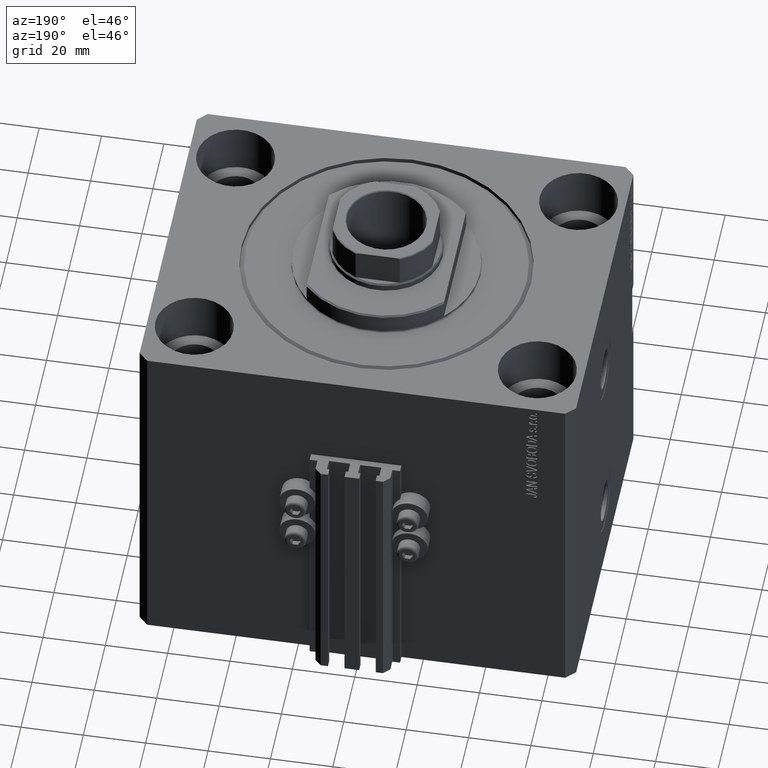
[diagram: clean part render]
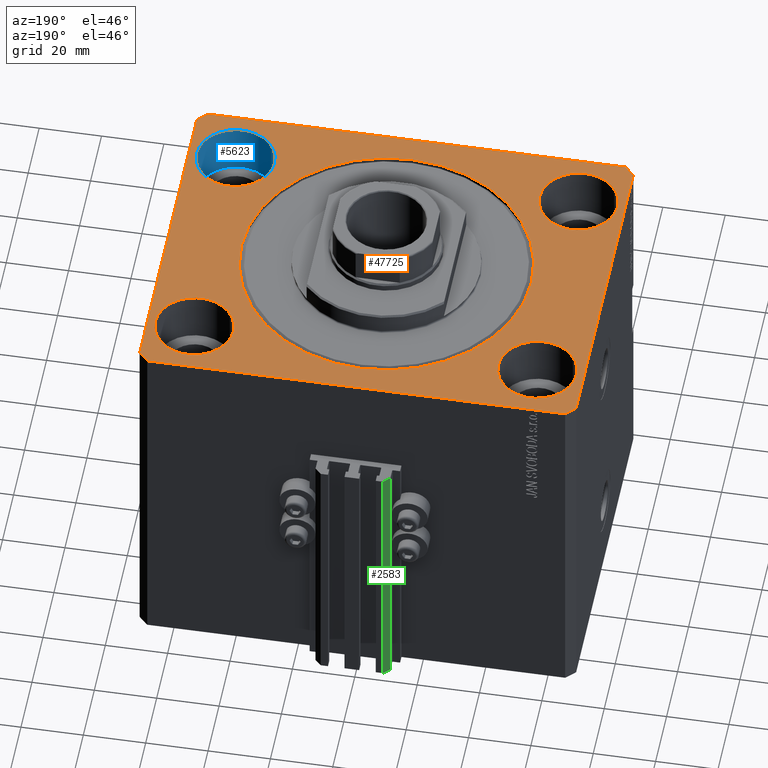
[diagram: same view with three faces highlighted in distinct colors, each labeled with its STEP entity id]
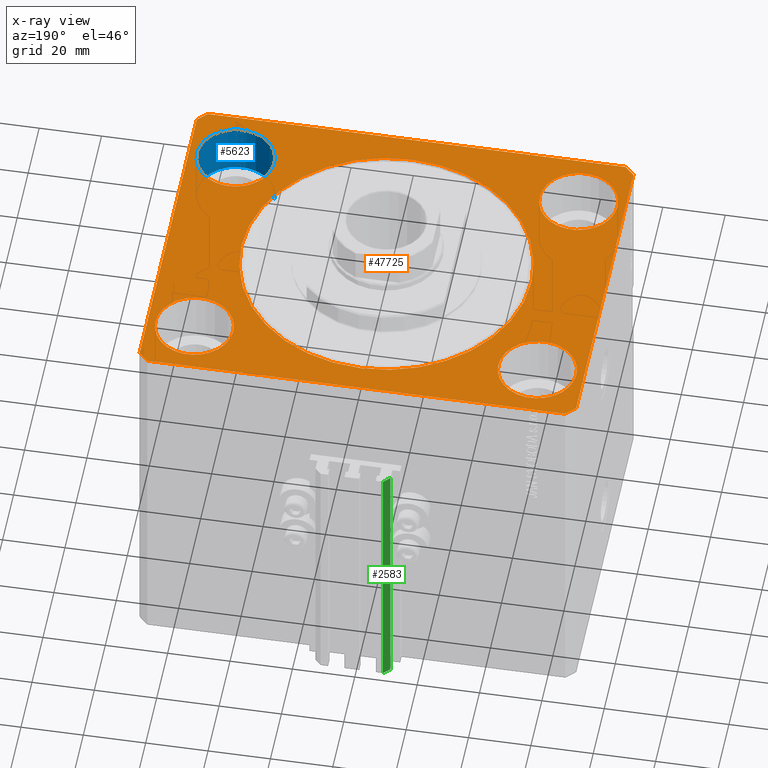
[diagram: x-ray of the same camera — body ghosted, the three highlighted faces saturated]
A machine part, auxiliary view with three faces highlighted in distinct colors.
The next image is the same camera in x-ray (body ghosted, the three faces saturated) — at least one of them is partly hidden behind the body in this view.
Their STEP definitions:

[orange] entity #47725 — the highlighted planar face has unit normal (0, 0, 1).
#12 = AXIS2_PLACEMENT_3D ( 'NONE', #10141, #40860, #6658 ) ;
#74 = LINE ( 'NONE', #7027, #13823 ) ;
#247 = CARTESIAN_POINT ( 'NONE',  ( 0.000000000000000000, 0.000000000000000000, 0.000000000000000000 ) ) ;
#346 = VECTOR ( 'NONE', #31118, 1000.000000000000000 ) ;
#772 = CIRCLE ( 'NONE', #28667, 12.49999999999999645 ) ;
#879 = ORIENTED_EDGE ( 'NONE', *, *, #25690, .F. ) ;
#1072 = VECTOR ( 'NONE', #20613, 1000.000000000000000 ) ;
#1089 = VERTEX_POINT ( 'NONE', #8980 ) ;
#1126 = DIRECTION ( 'NONE',  ( 1.000000000000000000, 0.000000000000000000, 0.000000000000000000 ) ) ;
#1235 = LINE ( 'NONE', #31920, #28699 ) ;
#1368 = CARTESIAN_POINT ( 'NONE',  ( 55.00000000000000711, -37.50000000000000711, 0.000000000000000000 ) ) ;
#1510 = CIRCLE ( 'NONE', #18992, 12.49999999999999645 ) ;
#2547 = VERTEX_POINT ( 'NONE', #24177 ) ;
#2702 = VERTEX_POINT ( 'NONE', #47375 ) ;
#2856 = CARTESIAN_POINT ( 'NONE',  ( 42.50000000000000711, 37.50000000000002132, 0.000000000000000000 ) ) ;
#3077 = EDGE_CURVE ( 'NONE', #47551, #3905, #26736, .T. ) ;
#3905 = VERTEX_POINT ( 'NONE', #25324 ) ;
#4024 = CIRCLE ( 'NONE', #16789, 12.49999999999999645 ) ;
#4258 = EDGE_LOOP ( 'NONE', ( #5799, #48051 ) ) ;
#4647 = CARTESIAN_POINT ( 'NONE',  ( -70.00000000000001421, -51.99999999999999289, 0.000000000000000000 ) ) ;
#5332 = CARTESIAN_POINT ( 'NONE',  ( 70.00000000000000000, -51.99999999999999289, 0.000000000000000000 ) ) ;
#5685 = DIRECTION ( 'NONE',  ( 1.000000000000000000, 1.553483709829976241E-16, 0.000000000000000000 ) ) ;
#5799 = ORIENTED_EDGE ( 'NONE', *, *, #42153, .F. ) ;
#5842 = VERTEX_POINT ( 'NONE', #41654 ) ;
#6198 = EDGE_CURVE ( 'NONE', #45144, #47551, #44062, .T. ) ;
#6348 = CARTESIAN_POINT ( 'NONE',  ( 70.00000000000000000, -51.99999999999999289, 0.000000000000000000 ) ) ;
#6411 = CARTESIAN_POINT ( 'NONE',  ( -42.50000000000000711, 37.49999999999999289, 0.000000000000000000 ) ) ;
#6658 = DIRECTION ( 'NONE',  ( 1.000000000000000000, 0.000000000000000000, -0.000000000000000000 ) ) ;
#7027 = CARTESIAN_POINT ( 'NONE',  ( -67.00000000000000000, 55.00000000000000000, 0.000000000000000000 ) ) ;
#7181 = AXIS2_PLACEMENT_3D ( 'NONE', #8431, #34896, #42874 ) ;
#7330 = VECTOR ( 'NONE', #16452, 1000.000000000000114 ) ;
#7467 = VERTEX_POINT ( 'NONE', #2856 ) ;
#7543 = DIRECTION ( 'NONE',  ( 1.000000000000000000, 0.000000000000000000, 0.000000000000000000 ) ) ;
#7677 = VERTEX_POINT ( 'NONE', #14209 ) ;
#8017 = AXIS2_PLACEMENT_3D ( 'NONE', #247, #37922, #30689 ) ;
#8431 = CARTESIAN_POINT ( 'NONE',  ( -55.00000000000000711, -37.50000000000000711, 0.000000000000000000 ) ) ;
#8819 = ORIENTED_EDGE ( 'NONE', *, *, #37439, .T. ) ;
#8980 = CARTESIAN_POINT ( 'NONE',  ( -67.00000000000000000, 55.00000000000000000, 0.000000000000000000 ) ) ;
#9384 = VECTOR ( 'NONE', #15062, 1000.000000000000000 ) ;
#9688 = EDGE_CURVE ( 'NONE', #1089, #21702, #74, .T. ) ;
#9758 = EDGE_CURVE ( 'NONE', #2702, #37259, #17808, .T. ) ;
#10059 = ORIENTED_EDGE ( 'NONE', *, *, #45560, .F. ) ;
#10141 = CARTESIAN_POINT ( 'NONE',  ( 0.000000000000000000, 0.000000000000000000, 0.000000000000000000 ) ) ;
#10345 = CIRCLE ( 'NONE', #7181, 12.49999999999999645 ) ;
#10376 = FACE_OUTER_BOUND ( 'NONE', #34946, .T. ) ;
#10478 = VECTOR ( 'NONE', #34799, 1000.000000000000000 ) ;
#11561 = LINE ( 'NONE', #35303, #10478 ) ;
#11579 = CARTESIAN_POINT ( 'NONE',  ( -69.99999999999998579, 51.99999999999999289, 0.000000000000000000 ) ) ;
#11606 = CIRCLE ( 'NONE', #28391, 12.49999999999999645 ) ;
#11959 = CARTESIAN_POINT ( 'NONE',  ( 67.00000000000001421, -54.99999999999997868, 0.000000000000000000 ) ) ;
#12615 = ORIENTED_EDGE ( 'NONE', *, *, #46854, .T. ) ;
#12726 = DIRECTION ( 'NONE',  ( 0.000000000000000000, 0.000000000000000000, 1.000000000000000000 ) ) ;
#13424 = VERTEX_POINT ( 'NONE', #41847 ) ;
#13823 = VECTOR ( 'NONE', #26257, 1000.000000000000114 ) ;
#13886 = EDGE_LOOP ( 'NONE', ( #16828, #24356 ) ) ;
#13968 = CARTESIAN_POINT ( 'NONE',  ( 55.00000000000000711, -37.50000000000000711, 0.000000000000000000 ) ) ;
#14209 = CARTESIAN_POINT ( 'NONE',  ( 46.50000000000000000, 0.000000000000000000, 0.000000000000000000 ) ) ;
#14530 = CARTESIAN_POINT ( 'NONE',  ( 67.00000000000001421, -54.99999999999997868, 0.000000000000000000 ) ) ;
#14630 = EDGE_CURVE ( 'NONE', #13424, #5842, #40462, .T. ) ;
#14785 = EDGE_LOOP ( 'NONE', ( #41355, #22028 ) ) ;
#15062 = DIRECTION ( 'NONE',  ( -2.668805347656626678E-16, -1.000000000000000000, 0.000000000000000000 ) ) ;
#15813 = CARTESIAN_POINT ( 'NONE',  ( -69.99999999999998579, 51.99999999999999289, 0.000000000000000000 ) ) ;
#16067 = VECTOR ( 'NONE', #34741, 1000.000000000000000 ) ;
#16216 = CARTESIAN_POINT ( 'NONE',  ( 55.00000000000000711, 37.50000000000002132, 0.000000000000000000 ) ) ;
#16452 = DIRECTION ( 'NONE',  ( 0.7071067811865474617, 0.7071067811865474617, 0.000000000000000000 ) ) ;
#16463 = DIRECTION ( 'NONE',  ( 0.000000000000000000, 0.000000000000000000, 1.000000000000000000 ) ) ;
#16789 = AXIS2_PLACEMENT_3D ( 'NONE', #13968, #40922, #21933 ) ;
#16828 = ORIENTED_EDGE ( 'NONE', *, *, #36229, .F. ) ;
#17808 = CIRCLE ( 'NONE', #36957, 12.49999999999999645 ) ;
#17946 = DIRECTION ( 'NONE',  ( 0.000000000000000000, 0.000000000000000000, 1.000000000000000000 ) ) ;
#18064 = EDGE_CURVE ( 'NONE', #21702, #39986, #26309, .T. ) ;
#18992 = AXIS2_PLACEMENT_3D ( 'NONE', #16216, #16463, #31472 ) ;
#19839 = EDGE_CURVE ( 'NONE', #7467, #37701, #1510, .T. ) ;
#20613 = DIRECTION ( 'NONE',  ( 5.337610695313255329E-15, 1.000000000000000000, 0.000000000000000000 ) ) ;
#20702 = DIRECTION ( 'NONE',  ( 1.000000000000000000, 0.000000000000000000, 0.000000000000000000 ) ) ;
#21254 = VERTEX_POINT ( 'NONE', #25886 ) ;
#21424 = EDGE_LOOP ( 'NONE', ( #37762, #879 ) ) ;
#21702 = VERTEX_POINT ( 'NONE', #11579 ) ;
#21933 = DIRECTION ( 'NONE',  ( 1.000000000000000000, 0.000000000000000000, 0.000000000000000000 ) ) ;
#22028 = ORIENTED_EDGE ( 'NONE', *, *, #9758, .F. ) ;
#22207 = DIRECTION ( 'NONE',  ( 0.000000000000000000, 0.000000000000000000, 1.000000000000000000 ) ) ;
#22362 = AXIS2_PLACEMENT_3D ( 'NONE', #49363, #42136, #41139 ) ;
#22511 = DIRECTION ( 'NONE',  ( 0.000000000000000000, 0.000000000000000000, 1.000000000000000000 ) ) ;
#22620 = CIRCLE ( 'NONE', #34588, 46.50000000000000000 ) ;
#22721 = DIRECTION ( 'NONE',  ( 1.000000000000000000, 0.000000000000000000, 0.000000000000000000 ) ) ;
#22732 = CARTESIAN_POINT ( 'NONE',  ( 70.00000000000056843, 51.99999999999996447, 0.000000000000000000 ) ) ;
#24177 = CARTESIAN_POINT ( 'NONE',  ( -67.50000000000000000, -37.50000000000000711, 0.000000000000000000 ) ) ;
#24260 = EDGE_LOOP ( 'NONE', ( #42502, #10059 ) ) ;
#24356 = ORIENTED_EDGE ( 'NONE', *, *, #45657, .F. ) ;
#24843 = EDGE_CURVE ( 'NONE', #39390, #2547, #10345, .T. ) ;
#25157 = FACE_BOUND ( 'NONE', #21424, .T. ) ;
#25315 = AXIS2_PLACEMENT_3D ( 'NONE', #1368, #32061, #1126 ) ;
#25324 = CARTESIAN_POINT ( 'NONE',  ( 67.00000000000061107, 55.00000000000002132, 0.000000000000000000 ) ) ;
#25500 = CARTESIAN_POINT ( 'NONE',  ( 70.00000000000056843, 51.99999999999996447, 0.000000000000000000 ) ) ;
#25690 = EDGE_CURVE ( 'NONE', #2547, #39390, #43916, .T. ) ;
#25726 = ORIENTED_EDGE ( 'NONE', *, *, #3077, .T. ) ;
#25886 = CARTESIAN_POINT ( 'NONE',  ( -46.50000000000000000, 5.694607616035192278E-15, 0.000000000000000000 ) ) ;
#26257 = DIRECTION ( 'NONE',  ( -0.7071067811865451302, -0.7071067811865500152, 0.000000000000000000 ) ) ;
#26309 = LINE ( 'NONE', #15813, #9384 ) ;
#26736 = LINE ( 'NONE', #22732, #16067 ) ;
#26751 = CARTESIAN_POINT ( 'NONE',  ( 67.50000000000000000, 37.50000000000002132, 0.000000000000000000 ) ) ;
#27300 = ORIENTED_EDGE ( 'NONE', *, *, #6198, .T. ) ;
#28172 = CARTESIAN_POINT ( 'NONE',  ( -70.00000000000001421, -51.99999999999999289, 0.000000000000000000 ) ) ;
#28391 = AXIS2_PLACEMENT_3D ( 'NONE', #45474, #22511, #7543 ) ;
#28634 = EDGE_CURVE ( 'NONE', #29348, #45144, #35459, .T. ) ;
#28667 = AXIS2_PLACEMENT_3D ( 'NONE', #48882, #17946, #33928 ) ;
#28699 = VECTOR ( 'NONE', #5685, 1000.000000000000000 ) ;
#29151 = FACE_BOUND ( 'NONE', #13886, .T. ) ;
#29348 = VERTEX_POINT ( 'NONE', #14530 ) ;
#29771 = VERTEX_POINT ( 'NONE', #45933 ) ;
#30216 = CARTESIAN_POINT ( 'NONE',  ( 0.000000000000000000, 0.000000000000000000, 0.000000000000000000 ) ) ;
#30689 = DIRECTION ( 'NONE',  ( 1.000000000000000000, 0.000000000000000000, 0.000000000000000000 ) ) ;
#31118 = DIRECTION ( 'NONE',  ( 0.7071067811865466846, -0.7071067811865483499, 0.000000000000000000 ) ) ;
#31437 = EDGE_CURVE ( 'NONE', #3905, #1089, #11561, .T. ) ;
#31472 = DIRECTION ( 'NONE',  ( 1.000000000000000000, 0.000000000000000000, 0.000000000000000000 ) ) ;
#31920 = CARTESIAN_POINT ( 'NONE',  ( -67.00000000000001421, -55.00000000000000000, 0.000000000000000000 ) ) ;
#32061 = DIRECTION ( 'NONE',  ( 0.000000000000000000, 0.000000000000000000, 1.000000000000000000 ) ) ;
#33928 = DIRECTION ( 'NONE',  ( 1.000000000000000000, 0.000000000000000000, 0.000000000000000000 ) ) ;
#34588 = AXIS2_PLACEMENT_3D ( 'NONE', #30216, #22207, #22721 ) ;
#34741 = DIRECTION ( 'NONE',  ( -0.7071067811865344721, 0.7071067811865606734, 0.000000000000000000 ) ) ;
#34799 = DIRECTION ( 'NONE',  ( -1.000000000000000000, -1.553483709829969339E-16, 0.000000000000000000 ) ) ;
#34896 = DIRECTION ( 'NONE',  ( 0.000000000000000000, 0.000000000000000000, 1.000000000000000000 ) ) ;
#34946 = EDGE_LOOP ( 'NONE', ( #39424, #48040, #44244, #8819, #12615, #35869, #27300, #25726 ) ) ;
#35303 = CARTESIAN_POINT ( 'NONE',  ( 67.00000000000061107, 55.00000000000002132, 0.000000000000000000 ) ) ;
#35459 = LINE ( 'NONE', #11959, #7330 ) ;
#35869 = ORIENTED_EDGE ( 'NONE', *, *, #28634, .T. ) ;
#36229 = EDGE_CURVE ( 'NONE', #7677, #21254, #22620, .T. ) ;
#36957 = AXIS2_PLACEMENT_3D ( 'NONE', #46919, #12726, #20702 ) ;
#37259 = VERTEX_POINT ( 'NONE', #6411 ) ;
#37439 = EDGE_CURVE ( 'NONE', #39986, #29771, #43095, .T. ) ;
#37701 = VERTEX_POINT ( 'NONE', #26751 ) ;
#37762 = ORIENTED_EDGE ( 'NONE', *, *, #24843, .F. ) ;
#37922 = DIRECTION ( 'NONE',  ( 0.000000000000000000, 0.000000000000000000, 1.000000000000000000 ) ) ;
#39390 = VERTEX_POINT ( 'NONE', #44553 ) ;
#39424 = ORIENTED_EDGE ( 'NONE', *, *, #31437, .T. ) ;
#39844 = EDGE_CURVE ( 'NONE', #37259, #2702, #11606, .T. ) ;
#39986 = VERTEX_POINT ( 'NONE', #28172 ) ;
#40381 = FACE_BOUND ( 'NONE', #4258, .T. ) ;
#40462 = CIRCLE ( 'NONE', #25315, 12.49999999999999645 ) ;
#40860 = DIRECTION ( 'NONE',  ( 0.000000000000000000, 0.000000000000000000, 1.000000000000000000 ) ) ;
#40922 = DIRECTION ( 'NONE',  ( 0.000000000000000000, 0.000000000000000000, 1.000000000000000000 ) ) ;
#41139 = DIRECTION ( 'NONE',  ( 1.000000000000000000, 0.000000000000000000, 0.000000000000000000 ) ) ;
#41355 = ORIENTED_EDGE ( 'NONE', *, *, #39844, .F. ) ;
#41654 = CARTESIAN_POINT ( 'NONE',  ( 42.50000000000000711, -37.50000000000000711, 0.000000000000000000 ) ) ;
#41847 = CARTESIAN_POINT ( 'NONE',  ( 67.50000000000000000, -37.50000000000000711, 0.000000000000000000 ) ) ;
#42136 = DIRECTION ( 'NONE',  ( 0.000000000000000000, 0.000000000000000000, 1.000000000000000000 ) ) ;
#42153 = EDGE_CURVE ( 'NONE', #37701, #7467, #772, .T. ) ;
#42502 = ORIENTED_EDGE ( 'NONE', *, *, #14630, .F. ) ;
#42874 = DIRECTION ( 'NONE',  ( 1.000000000000000000, 0.000000000000000000, 0.000000000000000000 ) ) ;
#43095 = LINE ( 'NONE', #4647, #346 ) ;
#43916 = CIRCLE ( 'NONE', #22362, 12.49999999999999645 ) ;
#44062 = LINE ( 'NONE', #6348, #1072 ) ;
#44128 = FACE_BOUND ( 'NONE', #24260, .T. ) ;
#44244 = ORIENTED_EDGE ( 'NONE', *, *, #18064, .T. ) ;
#44363 = PLANE ( 'NONE',  #12 ) ;
#44553 = CARTESIAN_POINT ( 'NONE',  ( -42.50000000000000711, -37.50000000000000711, 0.000000000000000000 ) ) ;
#44671 = CIRCLE ( 'NONE', #8017, 46.50000000000000000 ) ;
#45144 = VERTEX_POINT ( 'NONE', #5332 ) ;
#45474 = CARTESIAN_POINT ( 'NONE',  ( -55.00000000000000711, 37.49999999999999289, 0.000000000000000000 ) ) ;
#45560 = EDGE_CURVE ( 'NONE', #5842, #13424, #4024, .T. ) ;
#45657 = EDGE_CURVE ( 'NONE', #21254, #7677, #44671, .T. ) ;
#45933 = CARTESIAN_POINT ( 'NONE',  ( -67.00000000000001421, -55.00000000000000000, 0.000000000000000000 ) ) ;
#46854 = EDGE_CURVE ( 'NONE', #29771, #29348, #1235, .T. ) ;
#46919 = CARTESIAN_POINT ( 'NONE',  ( -55.00000000000000711, 37.49999999999999289, 0.000000000000000000 ) ) ;
#47375 = CARTESIAN_POINT ( 'NONE',  ( -67.50000000000000000, 37.49999999999999289, 0.000000000000000000 ) ) ;
#47551 = VERTEX_POINT ( 'NONE', #25500 ) ;
#47725 = ADVANCED_FACE ( 'NONE', ( #25157, #44128, #40381, #48339, #29151, #10376 ), #44363, .T. ) ;
#48040 = ORIENTED_EDGE ( 'NONE', *, *, #9688, .T. ) ;
#48051 = ORIENTED_EDGE ( 'NONE', *, *, #19839, .F. ) ;
#48339 = FACE_BOUND ( 'NONE', #14785, .T. ) ;
#48882 = CARTESIAN_POINT ( 'NONE',  ( 55.00000000000000711, 37.50000000000002132, 0.000000000000000000 ) ) ;
#49363 = CARTESIAN_POINT ( 'NONE',  ( -55.00000000000000711, -37.50000000000000711, 0.000000000000000000 ) ) ;

[blue] entity #5623 — the highlighted cylindrical surface (partial cylindrical patch) has radius 12.5 mm, axis along (0, 0, 1).
#39 = CARTESIAN_POINT ( 'NONE',  ( 55.00000000000000711, -37.50000000000000711, -17.00000000000000000 ) ) ;
#1007 = ORIENTED_EDGE ( 'NONE', *, *, #45560, .T. ) ;
#1365 = ORIENTED_EDGE ( 'NONE', *, *, #11661, .F. ) ;
#4024 = CIRCLE ( 'NONE', #16789, 12.49999999999999645 ) ;
#4312 = AXIS2_PLACEMENT_3D ( 'NONE', #28049, #47247, #4811 ) ;
#4802 = LINE ( 'NONE', #20031, #9007 ) ;
#4811 = DIRECTION ( 'NONE',  ( 1.000000000000000000, 0.000000000000000000, 0.000000000000000000 ) ) ;
#5623 = ADVANCED_FACE ( 'NONE', ( #49176 ), #45951, .F. ) ;
#5842 = VERTEX_POINT ( 'NONE', #41654 ) ;
#9007 = VECTOR ( 'NONE', #20291, 1000.000000000000000 ) ;
#11661 = EDGE_CURVE ( 'NONE', #17948, #37791, #25823, .T. ) ;
#13424 = VERTEX_POINT ( 'NONE', #41847 ) ;
#13968 = CARTESIAN_POINT ( 'NONE',  ( 55.00000000000000711, -37.50000000000000711, 0.000000000000000000 ) ) ;
#16789 = AXIS2_PLACEMENT_3D ( 'NONE', #13968, #40922, #21933 ) ;
#17009 = CARTESIAN_POINT ( 'NONE',  ( 67.50000000000000000, -37.50000000000000711, -17.00000000000000000 ) ) ;
#17948 = VERTEX_POINT ( 'NONE', #41050 ) ;
#20031 = CARTESIAN_POINT ( 'NONE',  ( 67.50000000000000000, -37.50000000000000711, -17.00000000000000000 ) ) ;
#20291 = DIRECTION ( 'NONE',  ( -0.000000000000000000, -0.000000000000000000, 1.000000000000000000 ) ) ;
#21753 = AXIS2_PLACEMENT_3D ( 'NONE', #39, #33985, #33738 ) ;
#21933 = DIRECTION ( 'NONE',  ( 1.000000000000000000, 0.000000000000000000, 0.000000000000000000 ) ) ;
#21968 = LINE ( 'NONE', #48198, #41466 ) ;
#22236 = EDGE_LOOP ( 'NONE', ( #1365, #29249, #1007, #37481 ) ) ;
#25730 = DIRECTION ( 'NONE',  ( -0.000000000000000000, -0.000000000000000000, 1.000000000000000000 ) ) ;
#25823 = CIRCLE ( 'NONE', #4312, 12.49999999999999645 ) ;
#28049 = CARTESIAN_POINT ( 'NONE',  ( 55.00000000000000711, -37.50000000000000711, -17.00000000000000000 ) ) ;
#29249 = ORIENTED_EDGE ( 'NONE', *, *, #43689, .T. ) ;
#29578 = EDGE_CURVE ( 'NONE', #37791, #13424, #4802, .T. ) ;
#33738 = DIRECTION ( 'NONE',  ( 1.000000000000000000, 0.000000000000000000, 0.000000000000000000 ) ) ;
#33985 = DIRECTION ( 'NONE',  ( -0.000000000000000000, -0.000000000000000000, 1.000000000000000000 ) ) ;
#37481 = ORIENTED_EDGE ( 'NONE', *, *, #29578, .F. ) ;
#37791 = VERTEX_POINT ( 'NONE', #17009 ) ;
#40922 = DIRECTION ( 'NONE',  ( 0.000000000000000000, 0.000000000000000000, 1.000000000000000000 ) ) ;
#41050 = CARTESIAN_POINT ( 'NONE',  ( 42.50000000000000711, -37.50000000000000711, -17.00000000000000000 ) ) ;
#41466 = VECTOR ( 'NONE', #25730, 1000.000000000000000 ) ;
#41654 = CARTESIAN_POINT ( 'NONE',  ( 42.50000000000000711, -37.50000000000000711, 0.000000000000000000 ) ) ;
#41847 = CARTESIAN_POINT ( 'NONE',  ( 67.50000000000000000, -37.50000000000000711, 0.000000000000000000 ) ) ;
#43689 = EDGE_CURVE ( 'NONE', #17948, #5842, #21968, .T. ) ;
#45560 = EDGE_CURVE ( 'NONE', #5842, #13424, #4024, .T. ) ;
#45951 = CYLINDRICAL_SURFACE ( 'NONE', #21753, 12.49999999999999645 ) ;
#47247 = DIRECTION ( 'NONE',  ( 0.000000000000000000, 0.000000000000000000, 1.000000000000000000 ) ) ;
#48198 = CARTESIAN_POINT ( 'NONE',  ( 42.50000000000000711, -37.50000000000000711, -17.00000000000000000 ) ) ;
#49176 = FACE_OUTER_BOUND ( 'NONE', #22236, .T. ) ;

[green] entity #2583 — the highlighted planar face has unit normal (-0.7071, 0.7071, 0).
#1229 = CARTESIAN_POINT ( 'NONE',  ( -10.00000000000000000, 63.00000000000000000, -120.0000000000000000 ) ) ;
#1339 = EDGE_CURVE ( 'NONE', #1553, #47393, #23158, .T. ) ;
#1553 = VERTEX_POINT ( 'NONE', #31660 ) ;
#2583 = ADVANCED_FACE ( 'NONE', ( #4692 ), #23667, .T. ) ;
#2992 = DIRECTION ( 'NONE',  ( 0.000000000000000000, 0.000000000000000000, 1.000000000000000000 ) ) ;
#3784 = VECTOR ( 'NONE', #5825, 1000.000000000000000 ) ;
#4692 = FACE_OUTER_BOUND ( 'NONE', #30322, .T. ) ;
#5716 = VECTOR ( 'NONE', #33461, 1000.000000000000114 ) ;
#5825 = DIRECTION ( 'NONE',  ( 0.000000000000000000, 0.000000000000000000, 1.000000000000000000 ) ) ;
#7840 = VECTOR ( 'NONE', #2992, 1000.000000000000000 ) ;
#7895 = CARTESIAN_POINT ( 'NONE',  ( -10.00000000000000000, 63.00000000000000000, -120.0000000000000000 ) ) ;
#11245 = VERTEX_POINT ( 'NONE', #43067 ) ;
#11276 = AXIS2_PLACEMENT_3D ( 'NONE', #1229, #27673, #16418 ) ;
#11911 = CARTESIAN_POINT ( 'NONE',  ( -10.00000000000000000, 63.00000000000000000, -33.00000000000000000 ) ) ;
#14634 = EDGE_CURVE ( 'NONE', #11245, #1553, #40025, .T. ) ;
#16418 = DIRECTION ( 'NONE',  ( -0.7071067811865446862, -0.7071067811865503483, 0.000000000000000000 ) ) ;
#17689 = CARTESIAN_POINT ( 'NONE',  ( -12.00000000000000000, 60.99999999999998579, -120.0000000000000000 ) ) ;
#19677 = EDGE_CURVE ( 'NONE', #29895, #47393, #21956, .T. ) ;
#21444 = VECTOR ( 'NONE', #33135, 1000.000000000000114 ) ;
#21956 = LINE ( 'NONE', #37199, #7840 ) ;
#23158 = LINE ( 'NONE', #11911, #5716 ) ;
#23667 = PLANE ( 'NONE',  #11276 ) ;
#24399 = ORIENTED_EDGE ( 'NONE', *, *, #19677, .T. ) ;
#27673 = DIRECTION ( 'NONE',  ( -0.7071067811865503483, 0.7071067811865446862, 0.000000000000000000 ) ) ;
#28983 = ORIENTED_EDGE ( 'NONE', *, *, #1339, .F. ) ;
#29895 = VERTEX_POINT ( 'NONE', #17689 ) ;
#30322 = EDGE_LOOP ( 'NONE', ( #28983, #46901, #34581, #24399 ) ) ;
#30805 = CARTESIAN_POINT ( 'NONE',  ( -12.00000000000000000, 60.99999999999998579, -33.00000000000000000 ) ) ;
#31660 = CARTESIAN_POINT ( 'NONE',  ( -10.00000000000000000, 63.00000000000000000, -33.00000000000000000 ) ) ;
#33135 = DIRECTION ( 'NONE',  ( -0.7071067811865446862, -0.7071067811865503483, 0.000000000000000000 ) ) ;
#33461 = DIRECTION ( 'NONE',  ( -0.7071067811865446862, -0.7071067811865503483, 0.000000000000000000 ) ) ;
#34581 = ORIENTED_EDGE ( 'NONE', *, *, #42512, .T. ) ;
#37118 = CARTESIAN_POINT ( 'NONE',  ( -10.00000000000000000, 63.00000000000000000, -120.0000000000000000 ) ) ;
#37199 = CARTESIAN_POINT ( 'NONE',  ( -12.00000000000000000, 60.99999999999998579, -120.0000000000000000 ) ) ;
#40025 = LINE ( 'NONE', #7895, #3784 ) ;
#40859 = LINE ( 'NONE', #37118, #21444 ) ;
#42512 = EDGE_CURVE ( 'NONE', #11245, #29895, #40859, .T. ) ;
#43067 = CARTESIAN_POINT ( 'NONE',  ( -10.00000000000000000, 63.00000000000000000, -120.0000000000000000 ) ) ;
#46901 = ORIENTED_EDGE ( 'NONE', *, *, #14634, .F. ) ;
#47393 = VERTEX_POINT ( 'NONE', #30805 ) ;